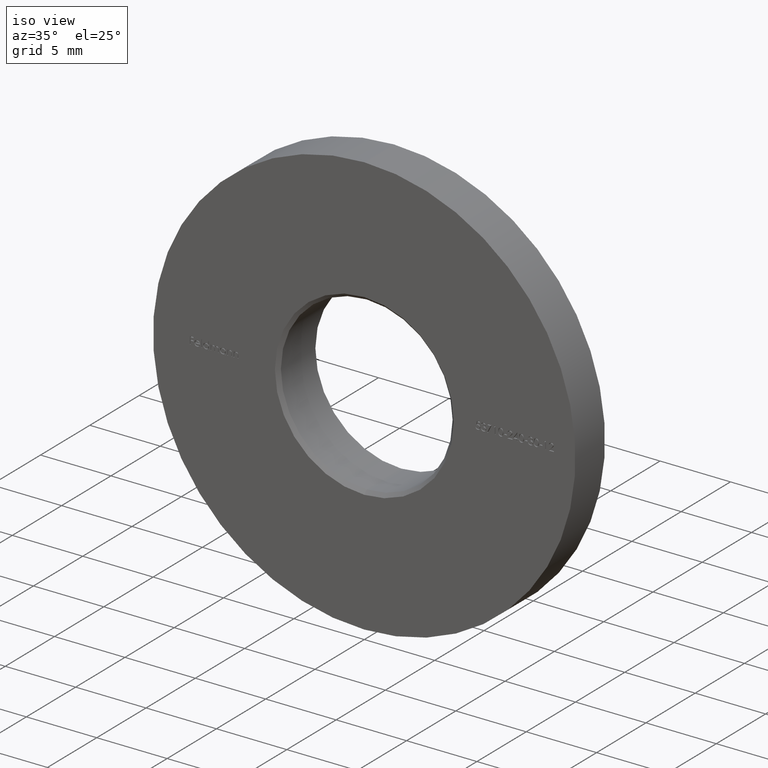
[diagram: clean part render]
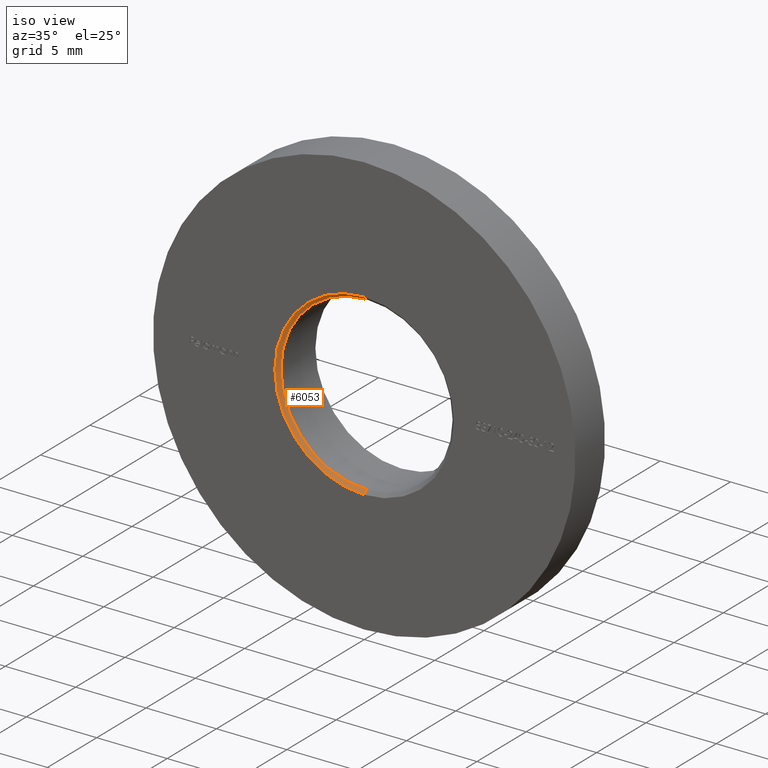
[diagram: same view with one face highlighted and labeled with its STEP entity id]
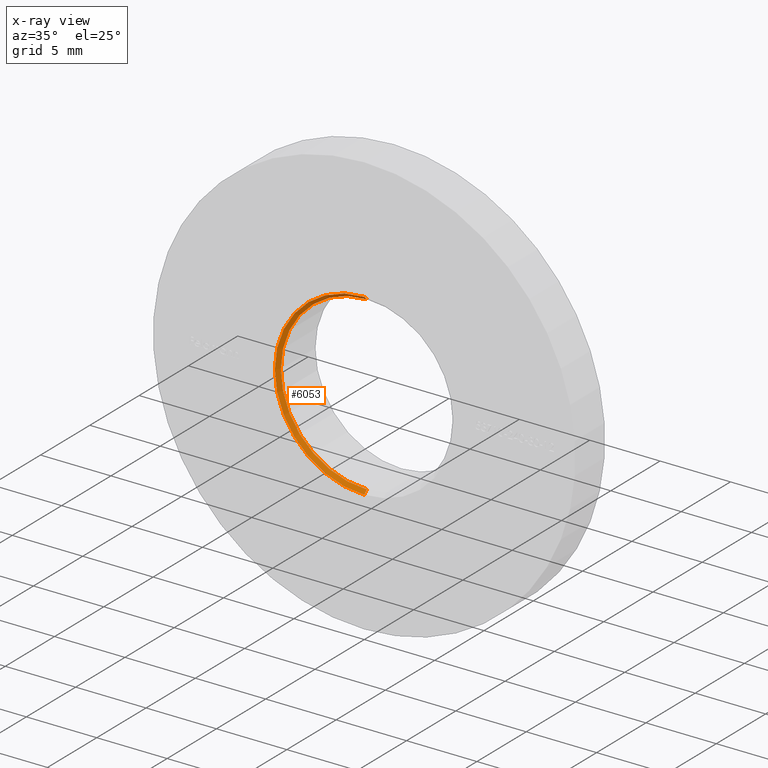
[diagram: x-ray of the same camera — body ghosted, the highlighted face saturated]
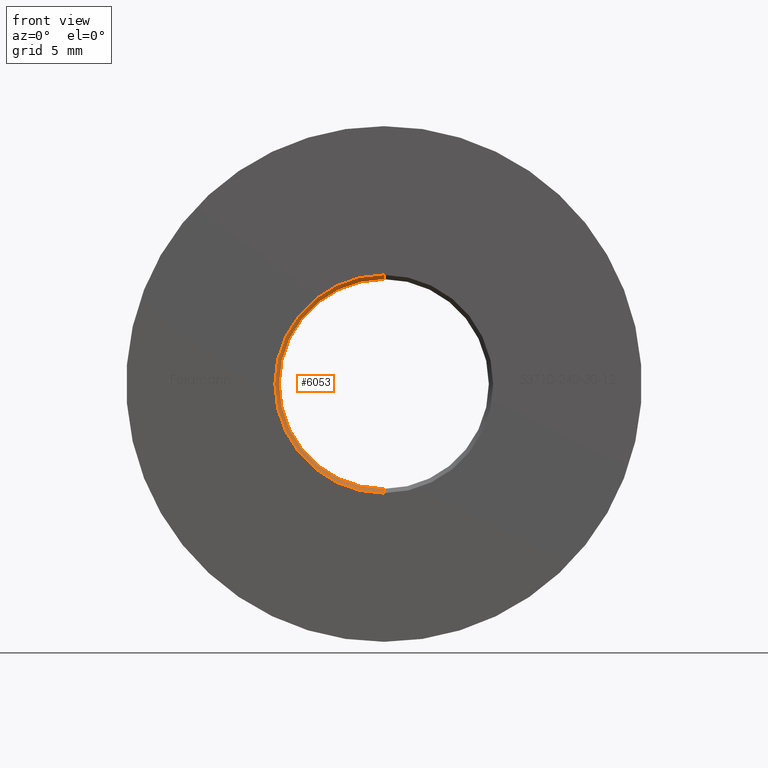
[diagram: same view with one face highlighted and labeled with its STEP entity id]
A machine part, iso view. The second image highlights one B-rep face of the part: STEP entity #6053.
The next image is the same camera in x-ray: the body ghosted, the highlighted face saturated — about 0% of this face is hidden behind the body in this view.
A second angle (front view) of the same face is appended — the face is thin or edge-on in the first view.
In plain terms, the highlighted conical surface has half-angle 45 deg.
Its self-contained STEP definition (entity closure, byte-faithful):
#545 = CARTESIAN_POINT ( 'NONE',  ( 0.000000000000000000, 0.2499999999999950040, 0.000000000000000000 ) ) ;
#850 = VERTEX_POINT ( 'NONE', #6819 ) ;
#1577 = DIRECTION ( 'NONE',  ( -0.000000000000000000, -1.000000000000000000, -0.000000000000000000 ) ) ;
#2195 = CARTESIAN_POINT ( 'NONE',  ( 7.776507174585686247E-16, 0.000000000000000000, 6.349999999999994316 ) ) ;
#3247 = LINE ( 'NONE', #10882, #8957 ) ;
#3550 = DIRECTION ( 'NONE',  ( 0.000000000000000000, 1.000000000000000000, 0.000000000000000000 ) ) ;
#3573 = DIRECTION ( 'NONE',  ( 0.000000000000000000, -0.7071067811865474617, -0.7071067811865474617 ) ) ;
#3630 = VECTOR ( 'NONE', #4636, 1000.000000000000114 ) ;
#3726 = CARTESIAN_POINT ( 'NONE',  ( 0.000000000000000000, 0.000000000000000000, -6.349999999999994316 ) ) ;
#4325 = FACE_OUTER_BOUND ( 'NONE', #11168, .T. ) ;
#4333 = DIRECTION ( 'NONE',  ( -0.000000000000000000, -1.000000000000000000, -0.000000000000000000 ) ) ;
#4636 = DIRECTION ( 'NONE',  ( 8.659560562354932858E-17, -0.7071067811865474617, 0.7071067811865474617 ) ) ;
#4641 = ORIENTED_EDGE ( 'NONE', *, *, #5518, .F. ) ;
#5354 = VERTEX_POINT ( 'NONE', #12322 ) ;
#5381 = ORIENTED_EDGE ( 'NONE', *, *, #10886, .T. ) ;
#5413 = VERTEX_POINT ( 'NONE', #3726 ) ;
#5518 = EDGE_CURVE ( 'NONE', #850, #10853, #11016, .T. ) ;
#5708 = CARTESIAN_POINT ( 'NONE',  ( 0.000000000000000000, 0.2499999999999950040, -6.099999999999999645 ) ) ;
#5807 = EDGE_CURVE ( 'NONE', #5413, #5354, #15773, .T. ) ;
#6053 = ADVANCED_FACE ( 'NONE', ( #4325 ), #11776, .F. ) ;
#6819 = CARTESIAN_POINT ( 'NONE',  ( 7.470345474798854293E-16, 0.2499999999999950040, 6.099999999999999645 ) ) ;
#7388 = CARTESIAN_POINT ( 'NONE',  ( 0.000000000000000000, 0.000000000000000000, 0.000000000000000000 ) ) ;
#7834 = DIRECTION ( 'NONE',  ( 0.000000000000000000, 0.000000000000000000, 1.000000000000000000 ) ) ;
#7930 = AXIS2_PLACEMENT_3D ( 'NONE', #545, #1577, #7834 ) ;
#8613 = DIRECTION ( 'NONE',  ( 0.000000000000000000, 0.000000000000000000, 1.000000000000000000 ) ) ;
#8957 = VECTOR ( 'NONE', #3573, 1000.000000000000114 ) ;
#9045 = AXIS2_PLACEMENT_3D ( 'NONE', #10428, #4333, #14089 ) ;
#10428 = CARTESIAN_POINT ( 'NONE',  ( 0.000000000000000000, 0.000000000000000000, 0.000000000000000000 ) ) ;
#10521 = LINE ( 'NONE', #2195, #3630 ) ;
#10853 = VERTEX_POINT ( 'NONE', #5708 ) ;
#10882 = CARTESIAN_POINT ( 'NONE',  ( 0.000000000000000000, 0.000000000000000000, -6.349999999999994316 ) ) ;
#10886 = EDGE_CURVE ( 'NONE', #850, #5354, #10521, .T. ) ;
#10955 = EDGE_CURVE ( 'NONE', #10853, #5413, #3247, .T. ) ;
#11016 = CIRCLE ( 'NONE', #7930, 6.099999999999999645 ) ;
#11168 = EDGE_LOOP ( 'NONE', ( #4641, #5381, #12870, #15721 ) ) ;
#11776 = CONICAL_SURFACE ( 'NONE', #9045, 6.349999999999994316, 0.7853981633974482790 ) ;
#12322 = CARTESIAN_POINT ( 'NONE',  ( 7.776507174585686247E-16, 0.000000000000000000, 6.349999999999994316 ) ) ;
#12870 = ORIENTED_EDGE ( 'NONE', *, *, #5807, .F. ) ;
#12923 = AXIS2_PLACEMENT_3D ( 'NONE', #7388, #3550, #8613 ) ;
#14089 = DIRECTION ( 'NONE',  ( 0.000000000000000000, 0.000000000000000000, -1.000000000000000000 ) ) ;
#15721 = ORIENTED_EDGE ( 'NONE', *, *, #10955, .F. ) ;
#15773 = CIRCLE ( 'NONE', #12923, 6.349999999999994316 ) ;